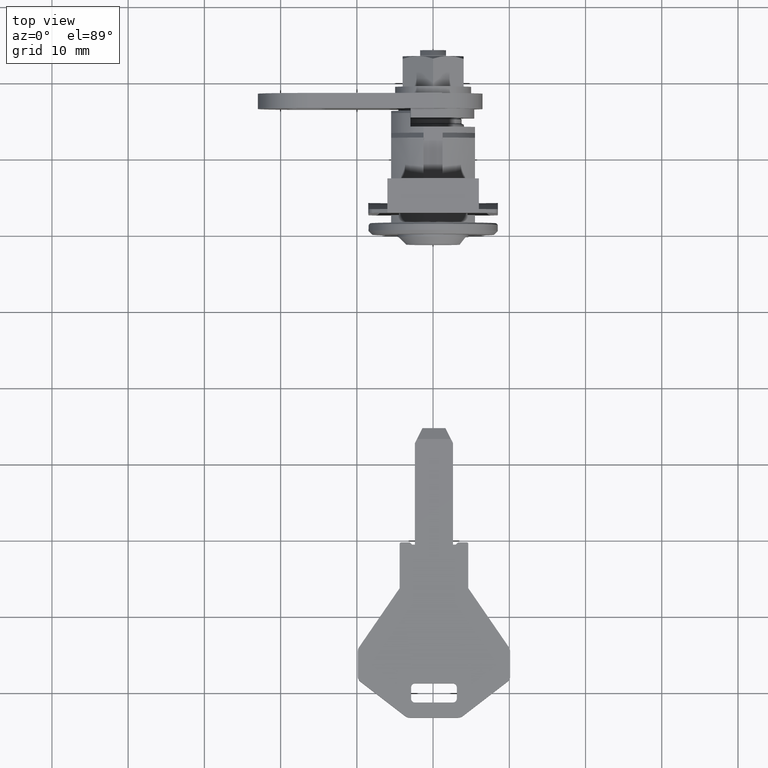
[diagram: clean part render]
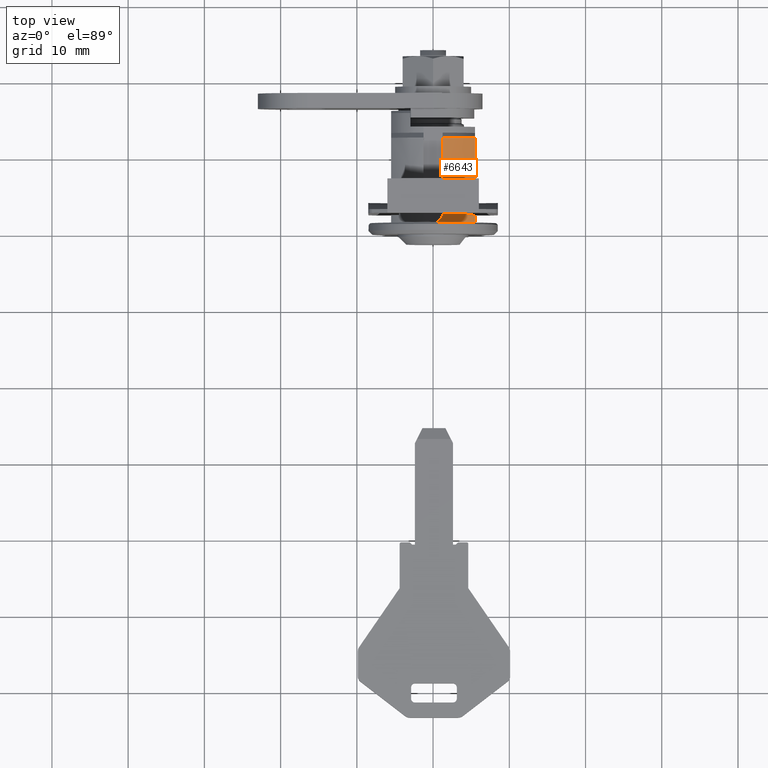
[diagram: same view with one face highlighted and labeled with its STEP entity id]
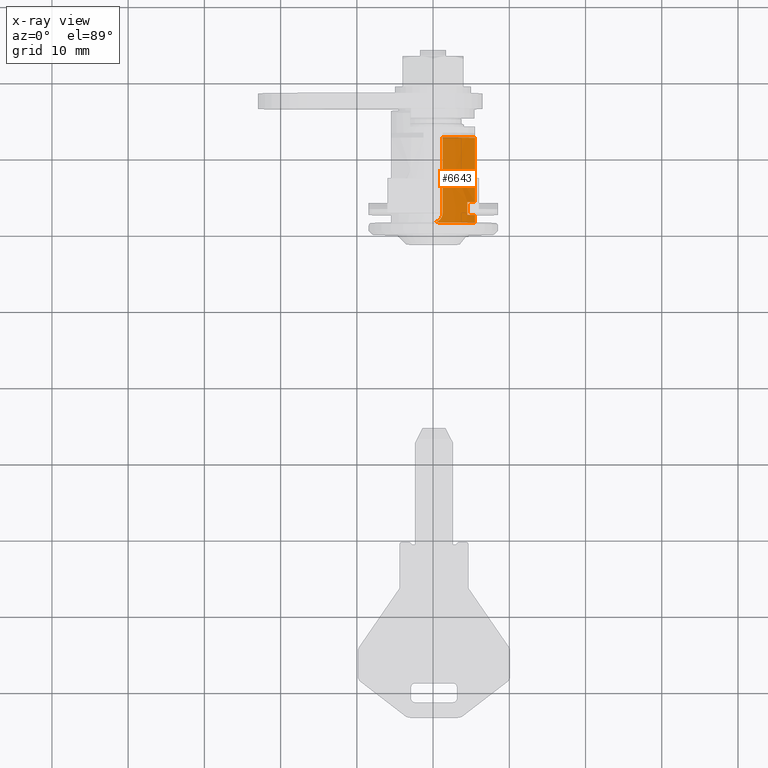
[diagram: x-ray of the same camera — body ghosted, the highlighted face saturated]
A machine part, top view. The second image highlights one B-rep face of the part: STEP entity #6643.
The next image is the same camera in x-ray: the body ghosted, the highlighted face saturated — about 0% of this face is hidden behind the body in this view.
In plain terms, the highlighted face is a freeform B-spline surface patch.
Its self-contained STEP definition (entity closure, byte-faithful):
#4690=CARTESIAN_POINT('',(2.749999999999885,-1.249999999999970,6.887488656992070));
#4691=VERTEX_POINT('',#4690);
#4705=CARTESIAN_POINT('',(1.499999999987974,0.0,7.000000000005220));
#4706=VERTEX_POINT('',#4705);
#4737=CARTESIAN_POINT('',(2.749999999999885,-1.249999999999970,6.887488656992070));
#4738=CARTESIAN_POINT('',(2.667251650262883,-1.249999999999971,6.887488656992043));
#4739=CARTESIAN_POINT('',(2.585919791451123,-1.241864635666242,6.888979152195505));
#4740=CARTESIAN_POINT('',(2.465951882513230,-1.217981604537275,6.893227560028024));
#4741=CARTESIAN_POINT('',(2.426303362092627,-1.208059313741303,6.894979276572503));
#4742=CARTESIAN_POINT('',(2.347701385327040,-1.184205490420425,6.899116167041941));
#4743=CARTESIAN_POINT('',(2.308677838337038,-1.170218503098352,6.901510116163762));
#4744=CARTESIAN_POINT('',(2.195221681253546,-1.123132849899456,6.909383873755538));
#4745=CARTESIAN_POINT('',(2.123499759064789,-1.084739277689741,6.915594170120336));
#4746=CARTESIAN_POINT('',(2.021696584169856,-1.016729854781448,6.925805794933380));
#4747=CARTESIAN_POINT('',(1.988584932371350,-0.992186561404436,6.929376471304259));
#4748=CARTESIAN_POINT('',(1.925092734182235,-0.940061211115836,6.936640207842126));
#4749=CARTESIAN_POINT('',(1.894863700968705,-0.912631450789748,6.940312989114569));
#4750=CARTESIAN_POINT('',(1.808585426119966,-0.826350784868078,6.951295317215227));
#4751=CARTESIAN_POINT('',(1.756901778074029,-0.763547778355966,6.958570429537350));
#4752=CARTESIAN_POINT('',(1.688358200526684,-0.661138420958433,6.968792786174945));
#4753=CARTESIAN_POINT('',(1.667129639153463,-0.625747144412127,6.972069009646379));
#4754=CARTESIAN_POINT('',(1.628595944332429,-0.553733375436387,6.978157716255715));
#4755=CARTESIAN_POINT('',(1.593747268572845,-0.480143383117821,6.983818142317669));
#4756=CARTESIAN_POINT('',(1.566183158264818,-0.403426789445084,6.988475097587735));
#4757=CARTESIAN_POINT('',(1.542326202685600,-0.325114577492385,6.992555890055353));
#4758=CARTESIAN_POINT('',(1.532210874413086,-0.284925741313589,6.994315372559507));
#4759=CARTESIAN_POINT('',(1.508058760528084,-0.163872168294984,6.998547474113350));
#4760=CARTESIAN_POINT('',(1.500064397382725,-0.082670471358446,6.999988500484605));
#4761=CARTESIAN_POINT('',(1.500000127930960,-0.000653013479272,6.999999977169008));
#4762=CARTESIAN_POINT('',(1.499999999671040,-0.000326510675470,7.000000000017356));
#4763=CARTESIAN_POINT('',(1.499999999987974,0.0,7.000000000005220));
#4764=B_SPLINE_CURVE_WITH_KNOTS('',3,(#4737,#4738,#4739,#4740,#4741,#4742,#4743,#4744,#4745,#4746,#4747,#4748,#4749,#4750,#4751,#4752,#4753,#4754,#4755,#4756,#4757,#4758,#4759,#4760,#4761,#4762,#4763),.UNSPECIFIED.,.F.,.U.,(4,2,2,2,2,2,2,2,2,1,2,2,2,4),(0.0,0.062500000000000,0.093750000000000,0.124999999999999,0.187499999999999,0.218749999999999,0.249999999999999,0.312499999999999,0.343749999999999,0.374999999999999,0.406249999999999,0.437499999999999,0.499999999999999,0.500249794256913),.UNSPECIFIED.);
#4765=EDGE_CURVE('',#4691,#4706,#4764,.T.);
#4785=CARTESIAN_POINT('',(12.649999999991479,-1.250000000000000,6.887488657004580));
#4786=VERTEX_POINT('',#4785);
#4787=CARTESIAN_POINT('',(12.649999999991479,-1.250000000000000,6.887488657004580));
#4788=CARTESIAN_POINT('',(2.749999999999885,-1.249999999999970,6.887488656992070));
#4789=QUASI_UNIFORM_CURVE('',1,(#4787,#4788),.UNSPECIFIED.,.F.,.U.);
#4790=EDGE_CURVE('',#4786,#4691,#4789,.T.);
#4962=CARTESIAN_POINT('',(4.200000000001480,-5.499999999996110,4.330127018947086));
#4963=VERTEX_POINT('',#4962);
#4969=CARTESIAN_POINT('',(4.200000000006980,-4.500000000009130,5.361902647392240));
#4970=VERTEX_POINT('',#4969);
#4971=CARTESIAN_POINT('',(4.200000000001480,-5.499999999996110,4.330127018947086));
#4972=CARTESIAN_POINT('',(4.200000000007813,-5.053228047375754,4.897603614591706));
#4973=CARTESIAN_POINT('',(4.200000000006980,-4.500000000009131,5.361902647392240));
#4981=(BOUNDED_CURVE()B_SPLINE_CURVE(2,(#4971,#4972,#4973),.UNSPECIFIED.,.F.,.U.)CURVE()GEOMETRIC_REPRESENTATION_ITEM()QUASI_UNIFORM_CURVE()RATIONAL_B_SPLINE_CURVE((1.0,0.994719320099128,1.0))REPRESENTATION_ITEM(''));
#4982=EDGE_CURVE('',#4963,#4970,#4981,.T.);
#5014=CARTESIAN_POINT('',(2.500000000006980,-4.499999999996070,5.361902647403210));
#5015=VERTEX_POINT('',#5014);
#5021=CARTESIAN_POINT('',(2.500000000008485,-5.499999999996110,4.330127018947086));
#5022=VERTEX_POINT('',#5021);
#5023=CARTESIAN_POINT('',(2.500000000006978,-4.499999999996065,5.361902647403204));
#5024=CARTESIAN_POINT('',(2.500000000007811,-5.053228047370425,4.897603614598475));
#5025=CARTESIAN_POINT('',(2.500000000008485,-5.499999999996110,4.330127018947086));
#5033=(BOUNDED_CURVE()B_SPLINE_CURVE(2,(#5023,#5024,#5025),.UNSPECIFIED.,.F.,.U.)CURVE()GEOMETRIC_REPRESENTATION_ITEM()QUASI_UNIFORM_CURVE()RATIONAL_B_SPLINE_CURVE((1.0,0.994719320099003,1.0))REPRESENTATION_ITEM(''));
#5034=EDGE_CURVE('',#5015,#5022,#5033,.T.);
#5055=CARTESIAN_POINT('',(4.200000000006980,-4.500000000009130,5.361902647392240));
#5056=CARTESIAN_POINT('',(2.500000000006980,-4.499999999996070,5.361902647403210));
#5057=QUASI_UNIFORM_CURVE('',1,(#5055,#5056),.UNSPECIFIED.,.F.,.U.);
#5058=EDGE_CURVE('',#4970,#5015,#5057,.T.);
#5761=CARTESIAN_POINT('',(1.499999999988992,-5.499999999990130,4.330127018937200));
#5762=VERTEX_POINT('',#5761);
#5768=CARTESIAN_POINT('',(1.499999999988992,-5.499999999990131,4.330127018937198));
#5769=CARTESIAN_POINT('',(1.499999999988992,-3.398020157725086,7.000000000001500));
#5770=CARTESIAN_POINT('',(1.499999999987974,0.0,7.000000000005220));
#5778=(BOUNDED_CURVE()B_SPLINE_CURVE(2,(#5768,#5769,#5770),.UNSPECIFIED.,.F.,.U.)CURVE()GEOMETRIC_REPRESENTATION_ITEM()QUASI_UNIFORM_CURVE()RATIONAL_B_SPLINE_CURVE((1.0,0.899608129724758,1.0))REPRESENTATION_ITEM(''));
#5779=EDGE_CURVE('',#5762,#4706,#5778,.T.);
#6151=CARTESIAN_POINT('',(12.649999999991500,-5.500000000002709,4.330127018947105));
#6152=VERTEX_POINT('',#6151);
#6153=CARTESIAN_POINT('',(12.649999999991500,-5.500000000002709,4.330127018947105));
#6154=CARTESIAN_POINT('',(12.649999999991488,-3.859451744284129,6.413903168477089));
#6155=CARTESIAN_POINT('',(12.649999999991479,-1.250000000000002,6.887488657004580));
#6163=(BOUNDED_CURVE()B_SPLINE_CURVE(2,(#6153,#6154,#6155),.UNSPECIFIED.,.F.,.U.)CURVE()GEOMETRIC_REPRESENTATION_ITEM()QUASI_UNIFORM_CURVE()RATIONAL_B_SPLINE_CURVE((1.0,0.935134502636949,1.0))REPRESENTATION_ITEM(''));
#6164=EDGE_CURVE('',#6152,#4786,#6163,.T.);
#6387=CARTESIAN_POINT('',(12.649999999991500,-5.500000000002709,4.330127018947105));
#6388=CARTESIAN_POINT('',(4.200000000001480,-5.499999999996110,4.330127018947086));
#6389=QUASI_UNIFORM_CURVE('',1,(#6387,#6388),.UNSPECIFIED.,.F.,.U.);
#6390=EDGE_CURVE('',#6152,#4963,#6389,.T.);
#6433=CARTESIAN_POINT('',(2.500000000008485,-5.499999999996110,4.330127018947086));
#6434=CARTESIAN_POINT('',(1.499999999988992,-5.499999999990130,4.330127018937200));
#6435=QUASI_UNIFORM_CURVE('',1,(#6433,#6434),.UNSPECIFIED.,.F.,.U.);
#6436=EDGE_CURVE('',#5022,#5762,#6435,.T.);
#6618=CARTESIAN_POINT('',(12.928749999991590,0.270355377024739,6.994777192327682));
#6619=CARTESIAN_POINT('',(1.214281249987884,0.270355377024739,6.994777192327682));
#6620=CARTESIAN_POINT('',(12.928749999991584,-3.487370600868819,7.140017190053918));
#6621=CARTESIAN_POINT('',(1.214281249987884,-3.487370600868819,7.140017190053918));
#6622=CARTESIAN_POINT('',(12.928749999991592,-5.682988622201534,4.087008725231945));
#6623=CARTESIAN_POINT('',(1.214281249987884,-5.682988622201534,4.087008725231945));
#6631=(BOUNDED_SURFACE()B_SPLINE_SURFACE(1,2,((#6618,#6620,#6622),(#6619,#6621,#6623)),.UNSPECIFIED.,.F.,.F.,.U.)B_SPLINE_SURFACE_WITH_KNOTS((2,2),(3,3),(0.0,11.714468750003700),(0.0,7.044939456778280),.UNSPECIFIED.)GEOMETRIC_REPRESENTATION_ITEM()RATIONAL_B_SPLINE_SURFACE(((1.0,0.879943810005234,0.997767556240300),(1.0,0.879943810005234,0.997767556240300)))REPRESENTATION_ITEM('')SURFACE());
#6632=ORIENTED_EDGE('',*,*,#4790,.T.);
#6633=ORIENTED_EDGE('',*,*,#4765,.T.);
#6634=ORIENTED_EDGE('',*,*,#5779,.F.);
#6635=ORIENTED_EDGE('',*,*,#6436,.F.);
#6636=ORIENTED_EDGE('',*,*,#5034,.F.);
#6637=ORIENTED_EDGE('',*,*,#5058,.F.);
#6638=ORIENTED_EDGE('',*,*,#4982,.F.);
#6639=ORIENTED_EDGE('',*,*,#6390,.F.);
#6640=ORIENTED_EDGE('',*,*,#6164,.T.);
#6641=EDGE_LOOP('',(#6632,#6633,#6634,#6635,#6636,#6637,#6638,#6639,#6640));
#6642=FACE_OUTER_BOUND('',#6641,.T.);
#6643=ADVANCED_FACE('',(#6642),#6631,.T.);